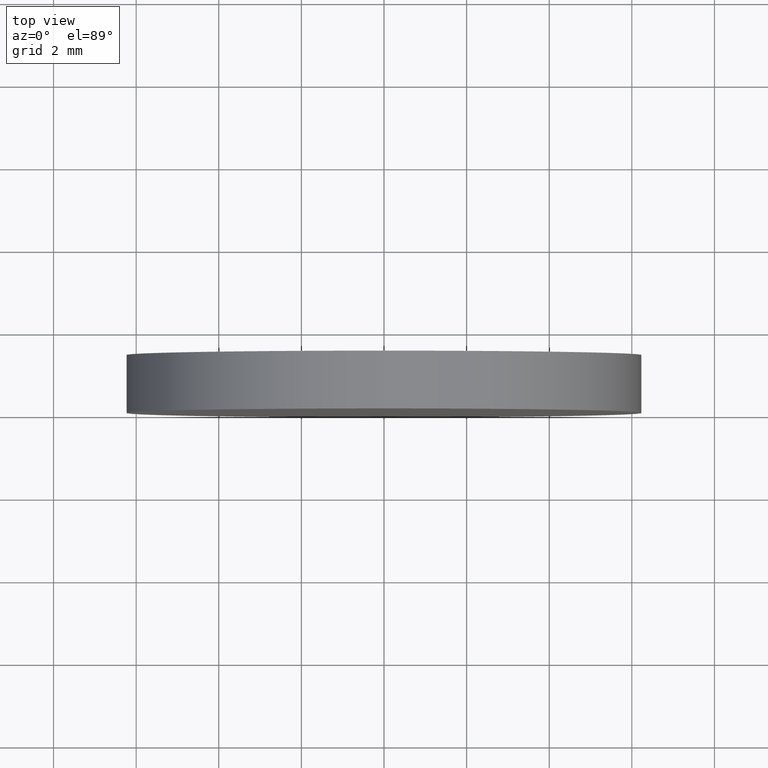
[diagram: clean part render]
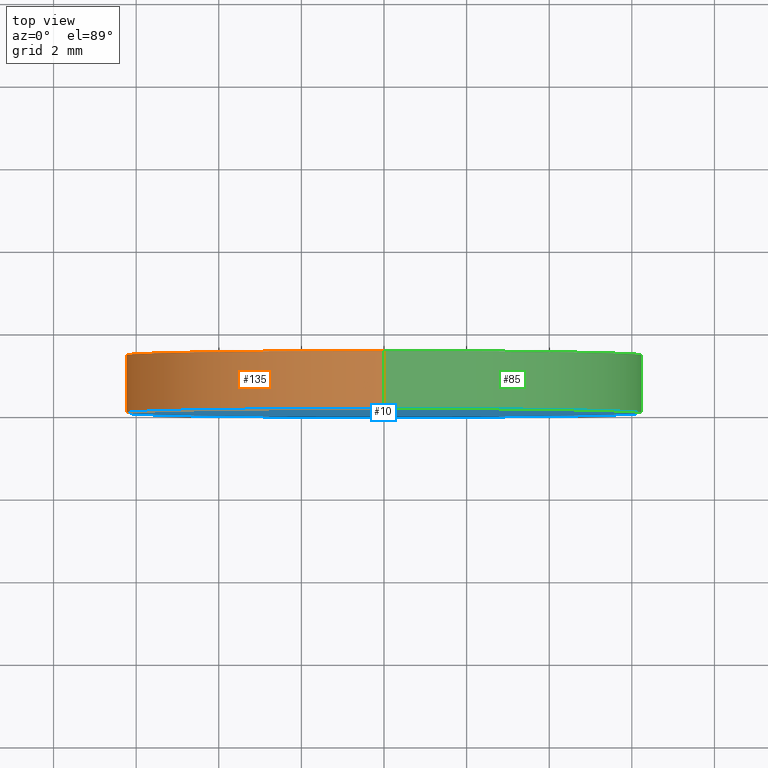
[diagram: same view with three faces highlighted in distinct colors, each labeled with its STEP entity id]
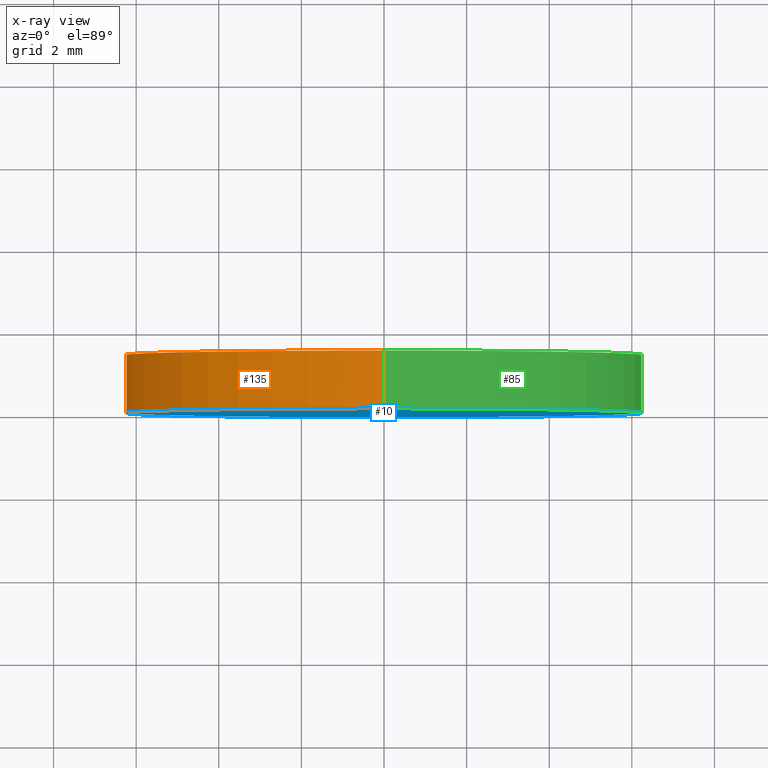
[diagram: x-ray of the same camera — body ghosted, the three highlighted faces saturated]
A machine part, top view with three faces highlighted in distinct colors.
The next image is the same camera in x-ray (body ghosted, the three faces saturated) — at least one of them is partly hidden behind the body in this view.
Their STEP definitions:

[orange] entity #135 — the highlighted cylindrical surface (partial cylindrical patch) has radius 6.25 mm, axis along (-0, -1, -0).
#1 = AXIS2_PLACEMENT_3D ( 'NONE', #104, #37, #92 ) ;
#3 = DIRECTION ( 'NONE',  ( 0.0000000000000000000, 0.0000000000000000000, 1.000000000000000000 ) ) ;
#11 = VERTEX_POINT ( 'NONE', #94 ) ;
#12 = CARTESIAN_POINT ( 'NONE',  ( 0.0000000000000000000, 1.399999999999999900, 0.0000000000000000000 ) ) ;
#15 = EDGE_CURVE ( 'NONE', #11, #115, #136, .T. ) ;
#21 = DIRECTION ( 'NONE',  ( 0.0000000000000000000, 0.0000000000000000000, -1.000000000000000000 ) ) ;
#27 = CARTESIAN_POINT ( 'NONE',  ( 0.0000000000000000000, 1.399999999999999900, -6.250000000000000000 ) ) ;
#32 = ORIENTED_EDGE ( 'NONE', *, *, #33, .T. ) ;
#33 = EDGE_CURVE ( 'NONE', #70, #11, #88, .T. ) ;
#36 = CARTESIAN_POINT ( 'NONE',  ( 0.0000000000000000000, 1.399999999999999900, -6.250000000000000000 ) ) ;
#37 = DIRECTION ( 'NONE',  ( 0.0000000000000000000, 1.000000000000000000, 0.0000000000000000000 ) ) ;
#42 = ORIENTED_EDGE ( 'NONE', *, *, #15, .T. ) ;
#43 = CARTESIAN_POINT ( 'NONE',  ( 7.654042494670957600E-016, 0.0000000000000000000, 6.250000000000000000 ) ) ;
#44 = LINE ( 'NONE', #131, #100 ) ;
#49 = EDGE_LOOP ( 'NONE', ( #61, #99, #32, #42 ) ) ;
#51 = AXIS2_PLACEMENT_3D ( 'NONE', #12, #67, #3 ) ;
#53 = EDGE_CURVE ( 'NONE', #54, #115, #44, .T. ) ;
#54 = VERTEX_POINT ( 'NONE', #58 ) ;
#58 = CARTESIAN_POINT ( 'NONE',  ( 7.654042494670957600E-016, 1.399999999999999900, 6.250000000000000000 ) ) ;
#60 = AXIS2_PLACEMENT_3D ( 'NONE', #91, #129, #21 ) ;
#61 = ORIENTED_EDGE ( 'NONE', *, *, #53, .F. ) ;
#65 = EDGE_CURVE ( 'NONE', #70, #54, #87, .T. ) ;
#67 = DIRECTION ( 'NONE',  ( 0.0000000000000000000, 1.000000000000000000, 0.0000000000000000000 ) ) ;
#70 = VERTEX_POINT ( 'NONE', #36 ) ;
#77 = CYLINDRICAL_SURFACE ( 'NONE', #60, 6.250000000000000000 ) ;
#81 = DIRECTION ( 'NONE',  ( -0.0000000000000000000, -1.000000000000000000, -0.0000000000000000000 ) ) ;
#83 = VECTOR ( 'NONE', #81, 1000.000000000000000 ) ;
#87 = CIRCLE ( 'NONE', #51, 6.250000000000000000 ) ;
#88 = LINE ( 'NONE', #27, #83 ) ;
#91 = CARTESIAN_POINT ( 'NONE',  ( 0.0000000000000000000, 1.399999999999999900, 0.0000000000000000000 ) ) ;
#92 = DIRECTION ( 'NONE',  ( 0.0000000000000000000, 0.0000000000000000000, 1.000000000000000000 ) ) ;
#94 = CARTESIAN_POINT ( 'NONE',  ( 0.0000000000000000000, 0.0000000000000000000, -6.250000000000000000 ) ) ;
#99 = ORIENTED_EDGE ( 'NONE', *, *, #65, .F. ) ;
#100 = VECTOR ( 'NONE', #128, 1000.000000000000000 ) ;
#104 = CARTESIAN_POINT ( 'NONE',  ( 0.0000000000000000000, 0.0000000000000000000, 0.0000000000000000000 ) ) ;
#115 = VERTEX_POINT ( 'NONE', #43 ) ;
#116 = FACE_OUTER_BOUND ( 'NONE', #49, .T. ) ;
#128 = DIRECTION ( 'NONE',  ( -0.0000000000000000000, -1.000000000000000000, -0.0000000000000000000 ) ) ;
#129 = DIRECTION ( 'NONE',  ( -0.0000000000000000000, -1.000000000000000000, -0.0000000000000000000 ) ) ;
#131 = CARTESIAN_POINT ( 'NONE',  ( 7.654042494670957600E-016, 1.399999999999999900, 6.250000000000000000 ) ) ;
#135 = ADVANCED_FACE ( 'NONE', ( #116 ), #77, .T. ) ;
#136 = CIRCLE ( 'NONE', #1, 6.250000000000000000 ) ;

[blue] entity #10 — the highlighted planar face has unit normal (0, 1, 0).
#1 = AXIS2_PLACEMENT_3D ( 'NONE', #104, #37, #92 ) ;
#4 = DIRECTION ( 'NONE',  ( 0.0000000000000000000, 0.0000000000000000000, 1.000000000000000000 ) ) ;
#10 = ADVANCED_FACE ( 'NONE', ( #140 ), #73, .F. ) ;
#11 = VERTEX_POINT ( 'NONE', #94 ) ;
#13 = CARTESIAN_POINT ( 'NONE',  ( 0.0000000000000000000, 0.0000000000000000000, 0.0000000000000000000 ) ) ;
#15 = EDGE_CURVE ( 'NONE', #11, #115, #136, .T. ) ;
#20 = EDGE_CURVE ( 'NONE', #115, #11, #105, .T. ) ;
#25 = AXIS2_PLACEMENT_3D ( 'NONE', #97, #29, #137 ) ;
#29 = DIRECTION ( 'NONE',  ( 0.0000000000000000000, 1.000000000000000000, 0.0000000000000000000 ) ) ;
#30 = EDGE_LOOP ( 'NONE', ( #138, #103 ) ) ;
#37 = DIRECTION ( 'NONE',  ( 0.0000000000000000000, 1.000000000000000000, 0.0000000000000000000 ) ) ;
#43 = CARTESIAN_POINT ( 'NONE',  ( 7.654042494670957600E-016, 0.0000000000000000000, 6.250000000000000000 ) ) ;
#69 = DIRECTION ( 'NONE',  ( 0.0000000000000000000, 1.000000000000000000, 0.0000000000000000000 ) ) ;
#73 = PLANE ( 'NONE',  #25 ) ;
#78 = AXIS2_PLACEMENT_3D ( 'NONE', #13, #69, #4 ) ;
#92 = DIRECTION ( 'NONE',  ( 0.0000000000000000000, 0.0000000000000000000, 1.000000000000000000 ) ) ;
#94 = CARTESIAN_POINT ( 'NONE',  ( 0.0000000000000000000, 0.0000000000000000000, -6.250000000000000000 ) ) ;
#97 = CARTESIAN_POINT ( 'NONE',  ( 0.0000000000000000000, 0.0000000000000000000, 0.0000000000000000000 ) ) ;
#103 = ORIENTED_EDGE ( 'NONE', *, *, #20, .F. ) ;
#104 = CARTESIAN_POINT ( 'NONE',  ( 0.0000000000000000000, 0.0000000000000000000, 0.0000000000000000000 ) ) ;
#105 = CIRCLE ( 'NONE', #78, 6.250000000000000000 ) ;
#115 = VERTEX_POINT ( 'NONE', #43 ) ;
#136 = CIRCLE ( 'NONE', #1, 6.250000000000000000 ) ;
#137 = DIRECTION ( 'NONE',  ( 0.0000000000000000000, -0.0000000000000000000, 1.000000000000000000 ) ) ;
#138 = ORIENTED_EDGE ( 'NONE', *, *, #15, .F. ) ;
#140 = FACE_OUTER_BOUND ( 'NONE', #30, .T. ) ;

[green] entity #85 — the highlighted cylindrical surface (partial cylindrical patch) has radius 6.25 mm, axis along (-0, -1, -0).
#4 = DIRECTION ( 'NONE',  ( 0.0000000000000000000, 0.0000000000000000000, 1.000000000000000000 ) ) ;
#5 = DIRECTION ( 'NONE',  ( 0.0000000000000000000, 1.000000000000000000, 0.0000000000000000000 ) ) ;
#7 = AXIS2_PLACEMENT_3D ( 'NONE', #59, #5, #46 ) ;
#11 = VERTEX_POINT ( 'NONE', #94 ) ;
#13 = CARTESIAN_POINT ( 'NONE',  ( 0.0000000000000000000, 0.0000000000000000000, 0.0000000000000000000 ) ) ;
#20 = EDGE_CURVE ( 'NONE', #115, #11, #105, .T. ) ;
#23 = EDGE_LOOP ( 'NONE', ( #122, #93, #74, #62 ) ) ;
#26 = DIRECTION ( 'NONE',  ( 0.0000000000000000000, 0.0000000000000000000, -1.000000000000000000 ) ) ;
#27 = CARTESIAN_POINT ( 'NONE',  ( 0.0000000000000000000, 1.399999999999999900, -6.250000000000000000 ) ) ;
#33 = EDGE_CURVE ( 'NONE', #70, #11, #88, .T. ) ;
#36 = CARTESIAN_POINT ( 'NONE',  ( 0.0000000000000000000, 1.399999999999999900, -6.250000000000000000 ) ) ;
#43 = CARTESIAN_POINT ( 'NONE',  ( 7.654042494670957600E-016, 0.0000000000000000000, 6.250000000000000000 ) ) ;
#44 = LINE ( 'NONE', #131, #100 ) ;
#46 = DIRECTION ( 'NONE',  ( 0.0000000000000000000, 0.0000000000000000000, 1.000000000000000000 ) ) ;
#53 = EDGE_CURVE ( 'NONE', #54, #115, #44, .T. ) ;
#54 = VERTEX_POINT ( 'NONE', #58 ) ;
#57 = CARTESIAN_POINT ( 'NONE',  ( 0.0000000000000000000, 1.399999999999999900, 0.0000000000000000000 ) ) ;
#58 = CARTESIAN_POINT ( 'NONE',  ( 7.654042494670957600E-016, 1.399999999999999900, 6.250000000000000000 ) ) ;
#59 = CARTESIAN_POINT ( 'NONE',  ( 0.0000000000000000000, 1.399999999999999900, 0.0000000000000000000 ) ) ;
#62 = ORIENTED_EDGE ( 'NONE', *, *, #33, .F. ) ;
#68 = AXIS2_PLACEMENT_3D ( 'NONE', #57, #102, #26 ) ;
#69 = DIRECTION ( 'NONE',  ( 0.0000000000000000000, 1.000000000000000000, 0.0000000000000000000 ) ) ;
#70 = VERTEX_POINT ( 'NONE', #36 ) ;
#74 = ORIENTED_EDGE ( 'NONE', *, *, #20, .T. ) ;
#76 = FACE_OUTER_BOUND ( 'NONE', #23, .T. ) ;
#78 = AXIS2_PLACEMENT_3D ( 'NONE', #13, #69, #4 ) ;
#81 = DIRECTION ( 'NONE',  ( -0.0000000000000000000, -1.000000000000000000, -0.0000000000000000000 ) ) ;
#83 = VECTOR ( 'NONE', #81, 1000.000000000000000 ) ;
#85 = ADVANCED_FACE ( 'NONE', ( #76 ), #90, .T. ) ;
#88 = LINE ( 'NONE', #27, #83 ) ;
#90 = CYLINDRICAL_SURFACE ( 'NONE', #68, 6.250000000000000000 ) ;
#93 = ORIENTED_EDGE ( 'NONE', *, *, #53, .T. ) ;
#94 = CARTESIAN_POINT ( 'NONE',  ( 0.0000000000000000000, 0.0000000000000000000, -6.250000000000000000 ) ) ;
#100 = VECTOR ( 'NONE', #128, 1000.000000000000000 ) ;
#102 = DIRECTION ( 'NONE',  ( -0.0000000000000000000, -1.000000000000000000, -0.0000000000000000000 ) ) ;
#105 = CIRCLE ( 'NONE', #78, 6.250000000000000000 ) ;
#115 = VERTEX_POINT ( 'NONE', #43 ) ;
#121 = EDGE_CURVE ( 'NONE', #54, #70, #123, .T. ) ;
#122 = ORIENTED_EDGE ( 'NONE', *, *, #121, .F. ) ;
#123 = CIRCLE ( 'NONE', #7, 6.250000000000000000 ) ;
#128 = DIRECTION ( 'NONE',  ( -0.0000000000000000000, -1.000000000000000000, -0.0000000000000000000 ) ) ;
#131 = CARTESIAN_POINT ( 'NONE',  ( 7.654042494670957600E-016, 1.399999999999999900, 6.250000000000000000 ) ) ;